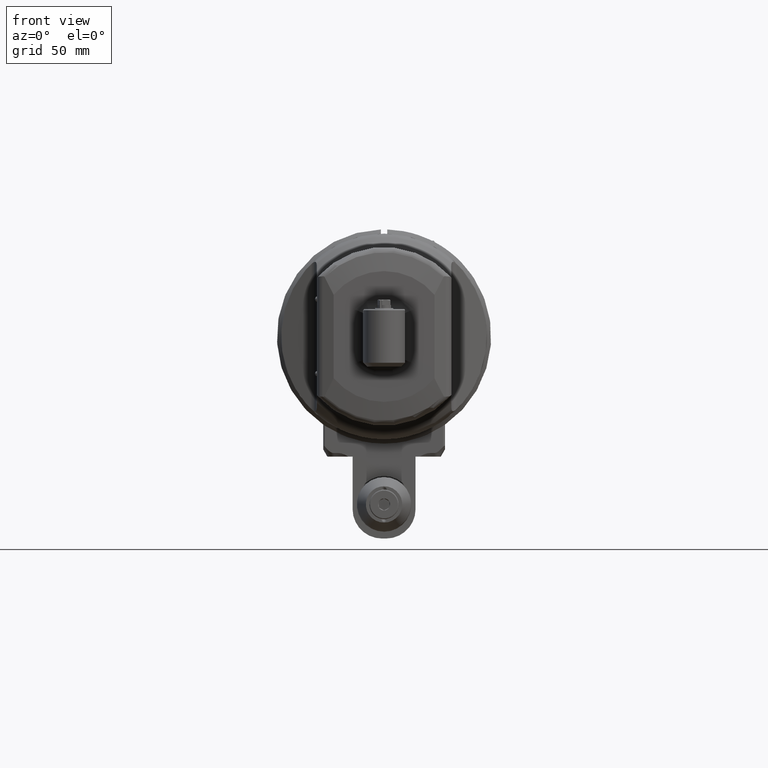
[diagram: clean part render]
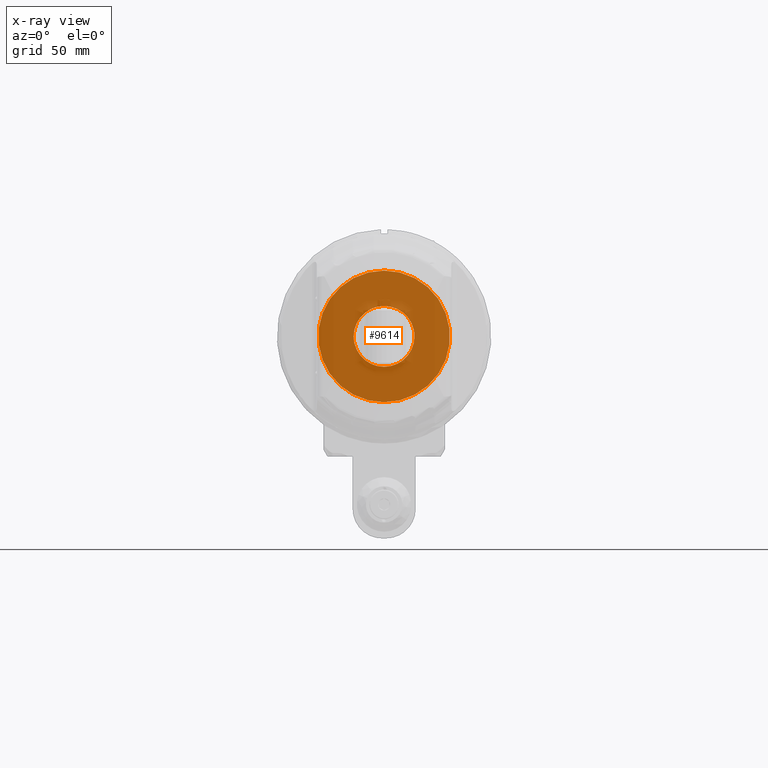
[diagram: x-ray — body ghosted, one internal face saturated and labeled with its STEP entity id]
A machine part, front view, then the same camera in x-ray: the body is ghosted and one INTERNAL B-rep face — a face not visible from any outside direction — is saturated and labeled: STEP entity #9614.
In plain terms, the highlighted planar face has unit normal (0, 1, 0).
Its self-contained STEP definition (entity closure, byte-faithful):
#299=FACE_BOUND('',#1520,.T.);
#525=PLANE('',#10347);
#936=FACE_OUTER_BOUND('',#1519,.T.);
#1519=EDGE_LOOP('',(#6821));
#1520=EDGE_LOOP('',(#6822,#6823));
#2133=CIRCLE('',#10348,31.35);
#2564=B_SPLINE_CURVE_WITH_KNOTS('',3,(#14664,#14665,#14666,#14667,#14668,
#14669,#14670,#14671,#14672,#14673,#14674,#14675,#14676,#14677,#14678,#14679,
#14680,#14681,#14682,#14683),.UNSPECIFIED.,.F.,.F.,(4,1,1,1,1,1,1,1,1,1,
1,1,1,1,1,1,1,4),(0.,0.05882352941176,0.1176470588235,0.1764705882353,0.2352941176471,
0.2941176470588,0.3529411764706,0.4117647058824,0.4705882352941,0.5294117647059,
0.5882352941176,0.6470588235294,0.7058823529412,0.7647058823529,0.8235294117647,
0.8823529411765,0.9411764705882,1.),.UNSPECIFIED.);
#2565=B_SPLINE_CURVE_WITH_KNOTS('',3,(#14684,#14685,#14686,#14687,#14688,
#14689,#14690,#14691,#14692,#14693,#14694,#14695,#14696,#14697,#14698,#14699,
#14700,#14701,#14702,#14703),.UNSPECIFIED.,.F.,.F.,(4,1,1,1,1,1,1,1,1,1,
1,1,1,1,1,1,1,4),(0.,0.05882352941176,0.1176470588235,0.1764705882353,0.2352941176471,
0.2941176470588,0.3529411764706,0.4117647058824,0.4705882352941,0.5294117647059,
0.5882352941176,0.6470588235294,0.7058823529412,0.7647058823529,0.8235294117647,
0.8823529411765,0.9411764705882,1.),.UNSPECIFIED.);
#4180=VERTEX_POINT('',#14660);
#4181=VERTEX_POINT('',#14662);
#4182=VERTEX_POINT('',#14663);
#5193=EDGE_CURVE('',#4180,#4180,#2133,.T.);
#5194=EDGE_CURVE('',#4181,#4182,#2564,.T.);
#5195=EDGE_CURVE('',#4182,#4181,#2565,.T.);
#6821=ORIENTED_EDGE('',*,*,#5193,.T.);
#6822=ORIENTED_EDGE('',*,*,#5194,.T.);
#6823=ORIENTED_EDGE('',*,*,#5195,.T.);
#9614=ADVANCED_FACE('',(#936,#299),#525,.F.);
#10347=AXIS2_PLACEMENT_3D('',#14659,#11586,#11587);
#10348=AXIS2_PLACEMENT_3D('',#14661,#11588,#11589);
#11586=DIRECTION('center_axis',(0.,1.,0.));
#11587=DIRECTION('ref_axis',(0.,0.,1.));
#11588=DIRECTION('center_axis',(0.,-1.,0.));
#11589=DIRECTION('ref_axis',(0.,0.,-1.));
#14659=CARTESIAN_POINT('Origin',(1.347113091385E-14,32.5,0.));
#14660=CARTESIAN_POINT('',(-4.14064332999959E-18,32.5,-31.35));
#14661=CARTESIAN_POINT('Origin',(1.61232300003015E-20,32.5,0.));
#14662=CARTESIAN_POINT('',(14.5,32.5,0.));
#14663=CARTESIAN_POINT('',(-14.5,32.5,0.));
#14664=CARTESIAN_POINT('Ctrl Pts',(14.5,32.5,0.));
#14665=CARTESIAN_POINT('Ctrl Pts',(14.49888450858,32.5,-0.9016584831045));
#14666=CARTESIAN_POINT('Ctrl Pts',(14.33554001612,32.5,-2.671468599625));
#14667=CARTESIAN_POINT('Ctrl Pts',(13.59869267255,32.5,-5.268829729588));
#14668=CARTESIAN_POINT('Ctrl Pts',(12.39548495214,32.5,-7.679337301994));
#14669=CARTESIAN_POINT('Ctrl Pts',(10.79223327368,32.5,-9.806914598114));
#14670=CARTESIAN_POINT('Ctrl Pts',(8.79091572937801,32.5,-11.63683328154));
#14671=CARTESIAN_POINT('Ctrl Pts',(6.49471575809501,32.5,-13.0569736024));
#14672=CARTESIAN_POINT('Ctrl Pts',(3.97808609475701,32.5,-14.02996751605));
#14673=CARTESIAN_POINT('Ctrl Pts',(1.33202254429501,32.5,-14.52162747338));
#14674=CARTESIAN_POINT('Ctrl Pts',(-1.35501022133299,32.5,-14.5192889571));
#14675=CARTESIAN_POINT('Ctrl Pts',(-3.99329212023499,32.5,-14.02494121093));
#14676=CARTESIAN_POINT('Ctrl Pts',(-6.49596555590199,32.5,-13.05524697636));
#14677=CARTESIAN_POINT('Ctrl Pts',(-8.77911230056899,32.5,-11.64458652108));
#14678=CARTESIAN_POINT('Ctrl Pts',(-10.77438007515,32.5,-9.825801018785));
#14679=CARTESIAN_POINT('Ctrl Pts',(-12.3799103196,32.5,-7.704440983411));
#14680=CARTESIAN_POINT('Ctrl Pts',(-13.58956697316,32.5,-5.293415155813));
#14681=CARTESIAN_POINT('Ctrl Pts',(-14.33354425829,32.5,-2.687238459729));
#14682=CARTESIAN_POINT('Ctrl Pts',(-14.49853883461,32.5,-0.9076552997688));
#14683=CARTESIAN_POINT('Ctrl Pts',(-14.5,32.5,0.));
#14684=CARTESIAN_POINT('Ctrl Pts',(-14.5,32.5,0.));
#14685=CARTESIAN_POINT('Ctrl Pts',(-14.49888450858,32.5,0.9016584831045));
#14686=CARTESIAN_POINT('Ctrl Pts',(-14.33554001612,32.5,2.671468599625));
#14687=CARTESIAN_POINT('Ctrl Pts',(-13.59869267255,32.5,5.268829729588));
#14688=CARTESIAN_POINT('Ctrl Pts',(-12.39548495214,32.5,7.679337301994));
#14689=CARTESIAN_POINT('Ctrl Pts',(-10.79223327368,32.5,9.806914598114));
#14690=CARTESIAN_POINT('Ctrl Pts',(-8.79091572937799,32.5,11.63683328154));
#14691=CARTESIAN_POINT('Ctrl Pts',(-6.49471575809499,32.5,13.0569736024));
#14692=CARTESIAN_POINT('Ctrl Pts',(-3.97808609475699,32.5,14.02996751605));
#14693=CARTESIAN_POINT('Ctrl Pts',(-1.33202254429499,32.5,14.52162747338));
#14694=CARTESIAN_POINT('Ctrl Pts',(1.35501022133301,32.5,14.5192889571));
#14695=CARTESIAN_POINT('Ctrl Pts',(3.99329212023501,32.5,14.02494121093));
#14696=CARTESIAN_POINT('Ctrl Pts',(6.49596555590201,32.5,13.05524697636));
#14697=CARTESIAN_POINT('Ctrl Pts',(8.77911230056901,32.5,11.64458652108));
#14698=CARTESIAN_POINT('Ctrl Pts',(10.77438007515,32.5,9.825801018785));
#14699=CARTESIAN_POINT('Ctrl Pts',(12.3799103196,32.5,7.704440983411));
#14700=CARTESIAN_POINT('Ctrl Pts',(13.58956697316,32.5,5.293415155813));
#14701=CARTESIAN_POINT('Ctrl Pts',(14.33354425829,32.5,2.687238459729));
#14702=CARTESIAN_POINT('Ctrl Pts',(14.49853883461,32.5,0.9076552997688));
#14703=CARTESIAN_POINT('Ctrl Pts',(14.5,32.5,0.));